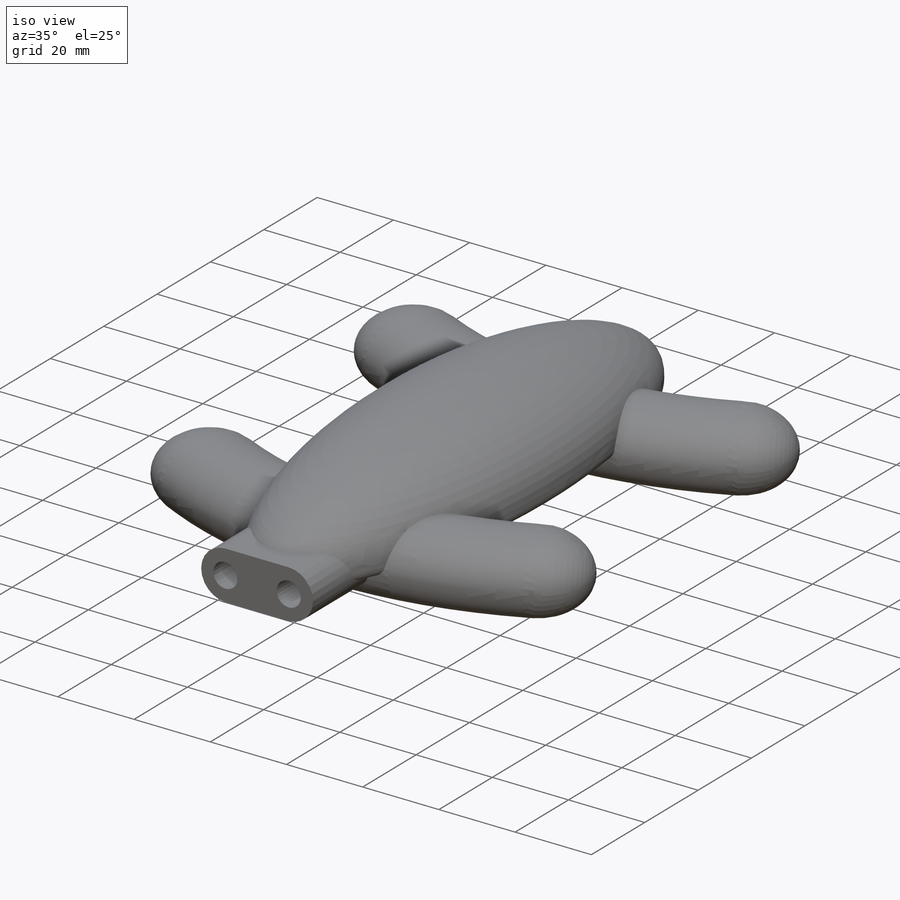
[diagram: iso view]
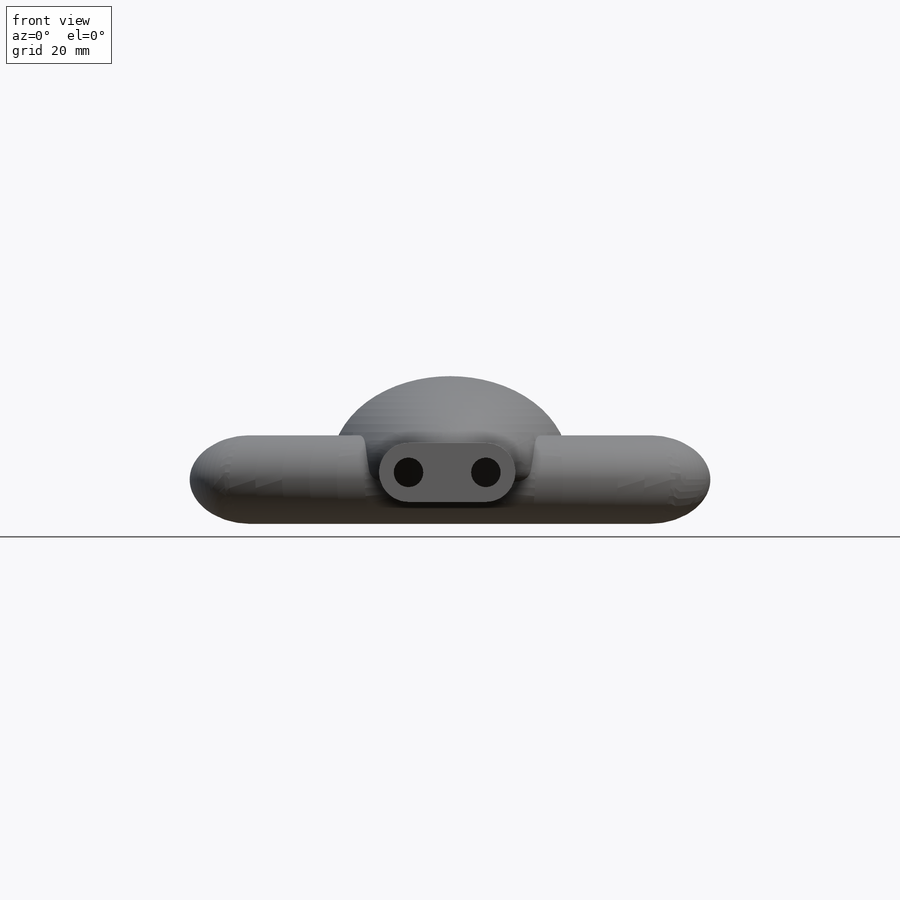
[diagram: front view]
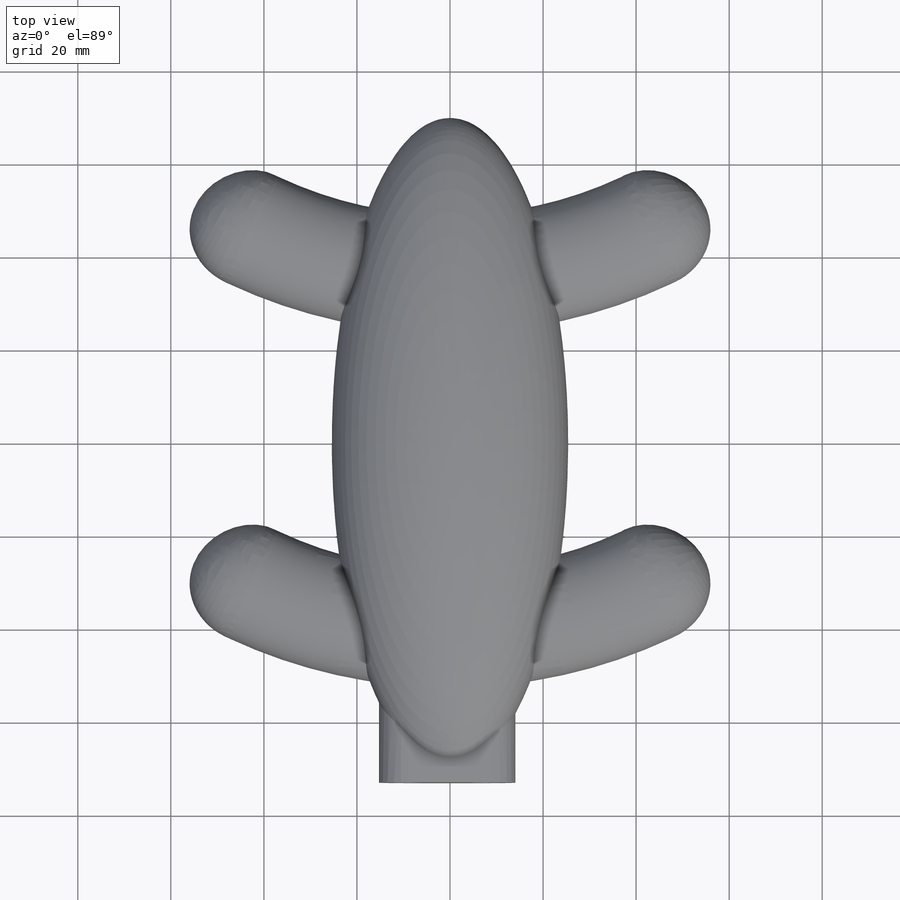
[diagram: top view]
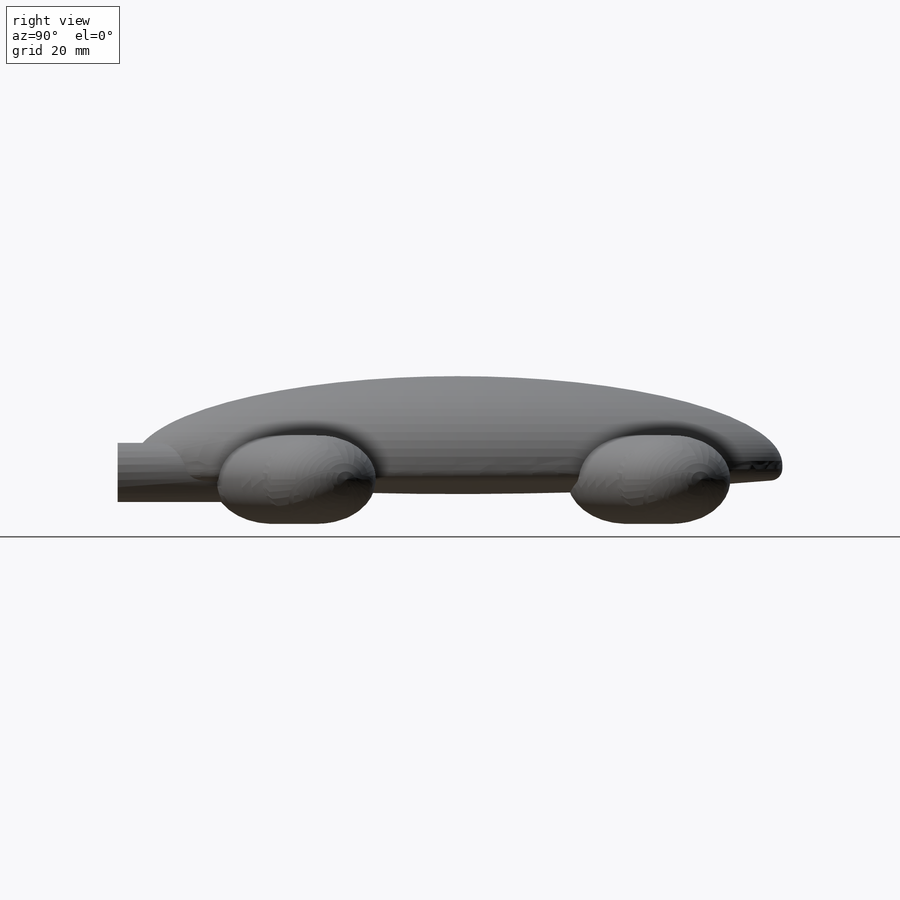
[diagram: right view]
SOLIDWORKS PART (.sldprt)
format: sldprt  version: not decoded by parser v0  size: 3,697,664 bytes
history: native  units: mm
features: sketch x32, extrude x15, cut_extrude x7, plane x6, boolean_combine x5, dome x3, delete_body x3, mirror x3, shell x2, move_body x2, material x1, fillet x1, pattern_linear x1, chamfer x1, helix x1, sweep x1 + 1 further entry (+20 scaffold rows collapsed; 7 parser-record rows omitted)
feature tree (112):
  scaffold x20  (default folders/planes/origin — collapsed)
  material  "Material <not specified>"
  "half_build_volume"
  parser-record x7  (decoder bookkeeping rows leaked as tree rows — omitted from the tree; the rows remain in map.json)
  sketch  "Sketch1"  dims[D1=139.7mm D2=50.8mm]
  extrude  "Boss-Extrude2"  Depth=3.175mm
  dome  "Dome1"
  dome  "Dome2"
  fillet  "Fillet1"  Radius=2.54mm
  sketch  "Sketch2"
  sketch  "Sketch3"  dims[D1=19.05mm D2=25.4mm]
  extrude  "Boss-Extrude22"  Depth=44.45mm
  dome  "Dome5"
  sketch  "Sketch25"  dims[D1=9.525mm]
  extrude  "Boss-Extrude17"  Depth=3.175mm
  sketch  "Sketch26"
  pattern_linear  "LPattern1"  Count1=5 Count2=1 Spacing1=6.35mm Spacing2=2.54mm
  sketch  "Sketch5"  dims[c1.D1=3.175mm c1.D2=9.525mm c2.D1=3.175mm c2.D2=~19.202717mm c3.D2=100.0deg]
  shell  "Shell4"  Thickness=3.175mm
  extrude  "Boss-Extrude23"  [1 undecoded]
  delete_body  "Body-Delete4"
  boolean_combine  "Combine22"
  mirror  "Mirror3"
  extrude  "Boss-Extrude24"  [1 undecoded]
  sketch  "Sketch3<5>"  dims[c1.D1=3.175mm c1.D0=66.0deg c2.D1=0.0mm c2.D2=0.0mm]
  mirror  "Mirror4"
  shell  "Shell3"  Thickness=4.7625mm
  plane  "Plane2"
  sketch  "Sketch9"  dims[D1=3.175mm]
  extrude  "Boss-Extrude11"  Depth=3.175mm
  sketch  "Sketch8"
  extrude  "Boss-Extrude10"  Depth=3.175mm
  sketch  "Sketch28"
  sketch  "Sketch6"  dims[D1=3.175mm D2=3.175mm D3=10.0]
  extrude  "Boss-Extrude9"  [1 undecoded]
  sketch  "Sketch27"  dims[D1=28.575mm]
  cut_extrude  "Cut-Extrude9"  [1 undecoded]
  boolean_combine  "Combine6"
  plane  "Plane4"  Offset=38.1mm
  mirror  "Mirror11"
  delete_body  "Body-Delete3"
  plane  "Plane3"
  sketch  "Sketch10"  dims[c1.D1=6.35mm c2.D1=1.27mm]
  boolean_combine  "Combine28"
  sketch  "Sketch11"  dims[D1=3.175mm]
  extrude  "Boss-Extrude21"  Depth=2.54mm
  boolean_combine  "Combine29"
  cut_extrude  "Cut-Extrude10"  [1 undecoded]
  sketch  "Sketch16"  dims[D1=2.54mm]
  plane  "Plane9"
  sketch  "Sketch17"  dims[D3=6.35mm D1=3.429mm D2=3.429mm D4=8.255mm]
  plane  "Plane10"
  sketch  "Sketch30"  dims[c1.D3=9.525mm c1.D4=9.525mm c1.D1=0.0mm c1.D2=0.0mm c2.D3=3.175mm]
  sketch  "Sketch31"  dims[D5=6.35mm D1=3.429mm D2=3.429mm D3=3.429mm D4=3.429mm]
  sketch  "Sketch32"  dims[D1=152.4mm D2=279.4mm]
  extrude  "Boss-Extrude25"  Depth=152.4mm
  sketch  "Sketch33"  dims[D3=5.842mm D4=3.175mm D5=~0.428625mm D1=0.0mm D2=3.175mm]
  extrude  "Boss-Extrude26"  Depth=6.35mm
  extrude  "Boss-Extrude27"  [1 undecoded]
  sketch  "Sketch33<2>"  dims[D1=3.175mm]
  extrude  "Boss-Extrude28"  [1 undecoded]
  sketch  "Sketch33<4>"
  chamfer  "Chamfer1"  Distance=1.7145mm Angle=45deg
  extrude  "Boss-Extrude29"  [1 undecoded]
  sketch  "Sketch33<5>"  dims[D1=3.9116mm]
  sketch  "Sketch39"
  sketch  "Sketch34"  dims[D1=0.9525mm D2=0.762mm]
  extrude  "Boss-Extrude30"  Depth=2.2225mm
  sketch  "Sketch35"
  helix  "Helix/Spiral1"  Pitch=2.2225mm
  plane  "Plane11"
  sketch  "Sketch36"  dims[c1.D1=~1.96136mm c2.D1=105.0deg c2.D2=~2.431086mm c3.D2=105.0deg c3.D3=1.27mm]
  sweep  "Cut-Sweep1"
  cut_extrude  "Cut-Extrude12"  [1 undecoded]
  sketch  "Sketch36<2>"
  cut_extrude  "Cut-Extrude13"  [1 undecoded]
  sketch  "Sketch36<3>"
  sketch  "Sketch40"  dims[c1.D2=2.54mm c2.D2=45.0deg c2.D3=~2.016581mm c2.D4=2.54mm c3.D4=~43.659692deg c3.D3=~4.033163mm c4.D3=30.0deg c4.D4=5.842mm c5.D4=65.0deg c5.D2=5.842mm c6.D2=65.0deg c6.D1=2.54mm]
  cut_extrude  "Cut-Extrude14"  [1 undecoded]
  move_body  "Body-Move/Copy1"
  move_body  "Body-Move/Copy2"
  boolean_combine  "Combine30"
  cut_extrude  "Cut-Extrude16"  [1 undecoded]
  sketch  "Sketch33<9>"
  delete_body  "Body-Delete5"
  sketch  "Sketch41"  dims[D1=4.1656mm]
  cut_extrude  "Cut-Extrude17"  Depth=7.62mm
decode coverage: 38 of 77 modeling features carry decoded parameters; 1 rows unclassified (native names shown)
note: ~ marks probable driven/reference dimensions
note: 12 parameter values undecoded
summary: no parameter record found for 12 features
note: suppression state not decoded; provenance and decode notes live in map.json
